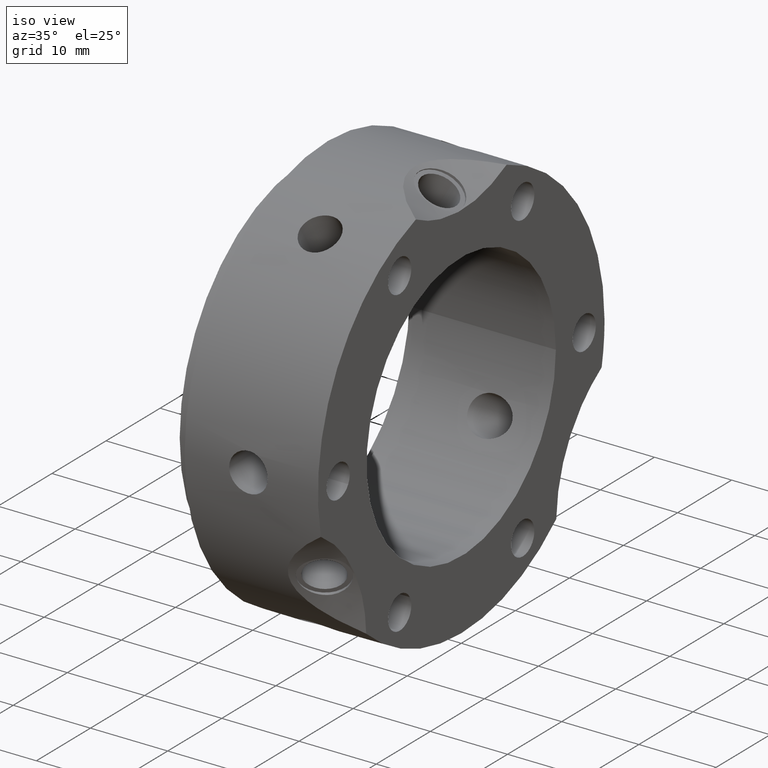
[diagram: clean part render]
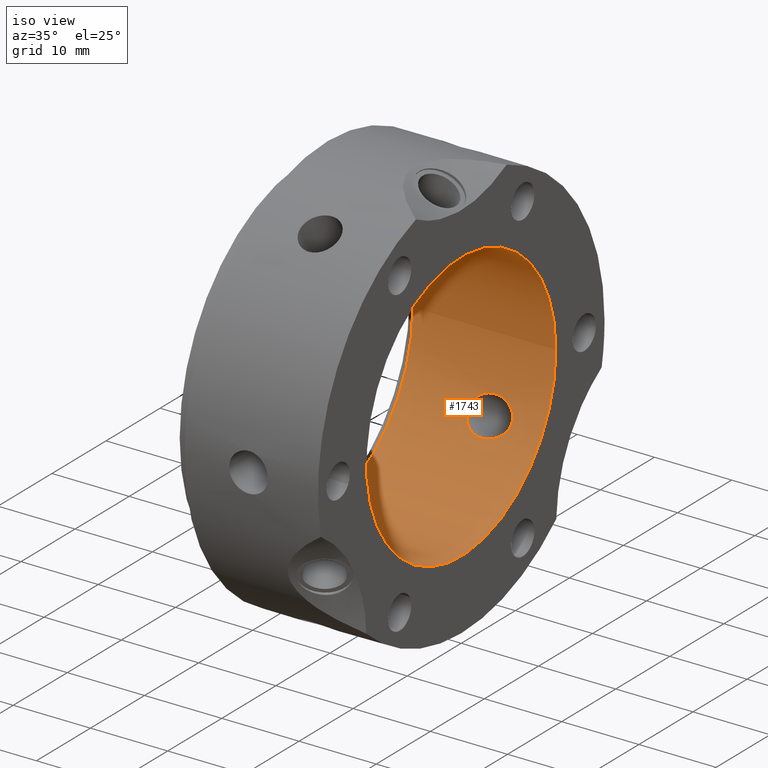
[diagram: same view with one face highlighted and labeled with its STEP entity id]
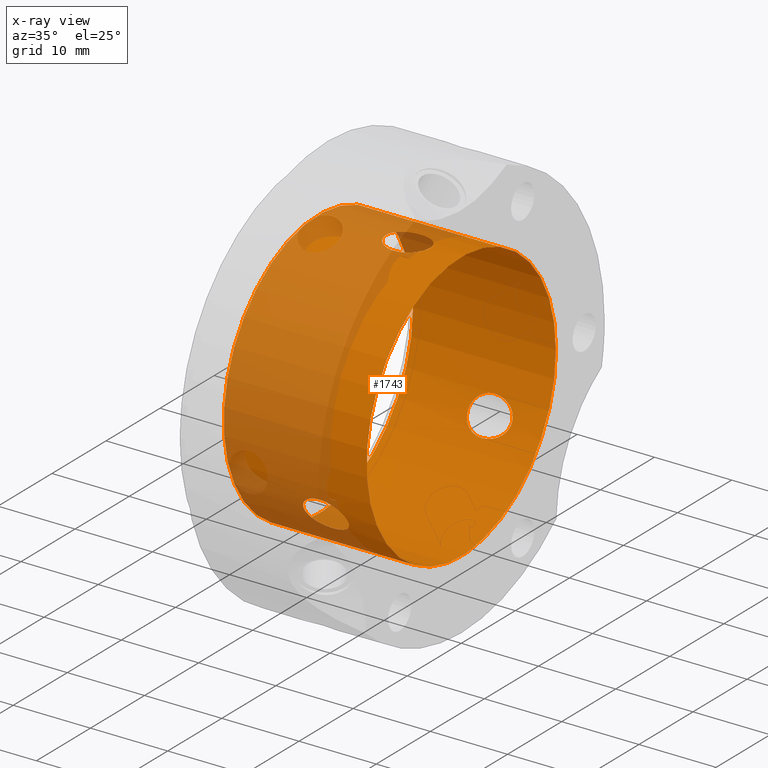
[diagram: x-ray of the same camera — body ghosted, the highlighted face saturated]
A machine part, iso view. The second image highlights one B-rep face of the part: STEP entity #1743.
The next image is the same camera in x-ray: the body ghosted, the highlighted face saturated — about 40% of this face is hidden behind the body in this view.
In plain terms, the highlighted cylindrical surface (bore or boss wall) has radius 17.5 mm, axis along (1, 0, 0).
Its self-contained STEP definition (entity closure, byte-faithful):
#1009=CARTESIAN_POINT('',(13.003429041250483,16.234393561875706,-6.534100219473887));
#1010=VERTEX_POINT('',#1009);
#1011=CARTESIAN_POINT('',(13.003429041250483,16.234393561875706,-6.534100219473887));
#1012=CARTESIAN_POINT('',(13.373336307908442,16.234393561875706,-6.534100219473887));
#1013=CARTESIAN_POINT('',(13.770285189591075,16.209947601815127,-6.595905488379764));
#1014=CARTESIAN_POINT('',(14.511918312238791,16.105838320849102,-6.846191825675691));
#1015=CARTESIAN_POINT('',(14.856675935834765,16.025869578238691,-7.034328190488567));
#1016=CARTESIAN_POINT('',(15.364097585535912,15.839158897460612,-7.443987466712572));
#1017=CARTESIAN_POINT('',(15.576430083381155,15.727602849725422,-7.679676166995005));
#1018=CARTESIAN_POINT('',(15.866034939625726,15.463193430240839,-8.199058902954477));
#1019=CARTESIAN_POINT('',(15.942460984423853,15.309665788798428,-8.482881006902074));
#1020=CARTESIAN_POINT('',(15.942460984423853,15.001223343656918,-9.017118993097943));
#1021=CARTESIAN_POINT('',(15.866034939625724,14.832190012203956,-9.291988882743981));
#1022=CARTESIAN_POINT('',(15.576430083381151,14.514596078318281,-9.780665524997263));
#1023=CARTESIAN_POINT('',(15.364097585535909,14.366261700356349,-9.995120246422943));
#1024=CARTESIAN_POINT('',(14.856675935834765,14.104841700639454,-10.361646077246645));
#1025=CARTESIAN_POINT('',(14.511918312238789,13.98189520064105,-10.524969222262397));
#1026=CARTESIAN_POINT('',(13.770285189591071,13.817195514805629,-10.74027367299667));
#1027=CARTESIAN_POINT('',(13.373336307908442,13.775893561875701,-10.79234712988197));
#1028=CARTESIAN_POINT('',(12.6627534965255,13.775893561875701,-10.79234712988197));
#1029=CARTESIAN_POINT('',(12.29565160609943,13.811252490323918,-10.747772379410465));
#1030=CARTESIAN_POINT('',(11.612956149517554,13.961830594717554,-10.55142610202032));
#1031=CARTESIAN_POINT('',(11.297504118251783,14.076982576244351,-10.3991113342442));
#1032=CARTESIAN_POINT('',(10.814017317679035,14.33544037064301,-10.039443479903557));
#1033=CARTESIAN_POINT('',(10.608326816669928,14.491576319438238,-9.815103226694662));
#1034=CARTESIAN_POINT('',(10.333766392309551,14.823068582513416,-9.306915345424757));
#1035=CARTESIAN_POINT('',(10.26479843721307,14.99794057673717,-9.022804912192353));
#1036=CARTESIAN_POINT('',(10.26479843721307,15.312948555718172,-8.477195087807669));
#1037=CARTESIAN_POINT('',(10.333766392309551,15.471559411265762,-8.183696281783245));
#1038=CARTESIAN_POINT('',(10.608326816669928,15.745916894803301,-7.642521620167196));
#1039=CARTESIAN_POINT('',(10.814017317679031,15.862133278776023,-7.395133795462097));
#1040=CARTESIAN_POINT('',(11.297504118251783,16.044385880360331,-6.99146885253644));
#1041=CARTESIAN_POINT('',(11.612956149517554,16.118718347862583,-6.815586927350058));
#1042=CARTESIAN_POINT('',(12.29565160609943,16.213470159824137,-6.587009324996388));
#1043=CARTESIAN_POINT('',(12.662753496525498,16.234393561875706,-6.534100219473887));
#1044=CARTESIAN_POINT('',(13.003429041250481,16.234393561875706,-6.534100219473887));
#1045=B_SPLINE_CURVE_WITH_KNOTS('',3,(#1011,#1012,#1013,#1014,#1015,#1016,#1017,#1018,#1019,#1020,#1021,#1022,#1023,#1024,#1025,#1026,#1027,#1028,#1029,#1030,#1031,#1032,#1033,#1034,#1035,#1036,#1037,#1038,#1039,#1040,#1041,#1042,#1043,#1044),.UNSPECIFIED.,.T.,.U.,(4,2,2,2,2,2,2,2,2,2,2,2,2,2,2,2,4),(0.0,0.110972179997387,0.221944359994774,0.314477093537227,0.40700982707968,0.499542560622133,0.592075294164585,0.703047474161973,0.81401965415936,0.916222317576854,1.018424980994349,1.112927374688649,1.20742976838295,1.30193216207725,1.39643455577155,1.498637219189045,1.60083988260654),.UNSPECIFIED.);
#1046=EDGE_CURVE('',#1010,#1010,#1045,.T.);
#1180=CARTESIAN_POINT('',(13.003429041250483,-13.775893561875709,-10.792347129881959));
#1181=VERTEX_POINT('',#1180);
#1182=CARTESIAN_POINT('',(13.003429041250483,-13.775893561875709,-10.792347129881959));
#1183=CARTESIAN_POINT('',(13.373336307908442,-13.775893561875709,-10.792347129881959));
#1184=CARTESIAN_POINT('',(13.770285189591075,-13.817195514805638,-10.740273672996661));
#1185=CARTESIAN_POINT('',(14.511918312238791,-13.981895200641059,-10.524969222262389));
#1186=CARTESIAN_POINT('',(14.856675935834765,-14.104841700639463,-10.361646077246633));
#1187=CARTESIAN_POINT('',(15.364097585535909,-14.366261700356358,-9.99512024642293));
#1188=CARTESIAN_POINT('',(15.576430083381155,-14.514596078318288,-9.78066552499725));
#1189=CARTESIAN_POINT('',(15.866034939625726,-14.832190012203963,-9.291988882743969));
#1190=CARTESIAN_POINT('',(15.942460984423853,-15.001223343656921,-9.017118993097933));
#1191=CARTESIAN_POINT('',(15.942460984423853,-15.317695526154473,-8.468973093829961));
#1192=CARTESIAN_POINT('',(15.858038676516639,-15.47781988171633,-8.171809819146024));
#1193=CARTESIAN_POINT('',(15.541785133059449,-15.750823224441293,-7.632362090455414));
#1194=CARTESIAN_POINT('',(15.31083778134837,-15.864473531899016,-7.389950450285607));
#1195=CARTESIAN_POINT('',(14.788449202465696,-16.042666331264112,-6.995277421971109));
#1196=CARTESIAN_POINT('',(14.453647602831339,-16.116226614764425,-6.821498244046975));
#1197=CARTESIAN_POINT('',(13.738177190724087,-16.211947517549127,-6.590778120195333));
#1198=CARTESIAN_POINT('',(13.357461792855588,-16.234393561875709,-6.534100219473874));
#1199=CARTESIAN_POINT('',(12.653604256878271,-16.234393561875709,-6.534100219473874));
#1200=CARTESIAN_POINT('',(12.277080953631852,-16.212347470664039,-6.589895600739731));
#1201=CARTESIAN_POINT('',(11.579822078598458,-16.112553213950001,-6.830268173590252));
#1202=CARTESIAN_POINT('',(11.259228811305789,-16.034268093852727,-7.015034870847647));
#1203=CARTESIAN_POINT('',(10.785404978638606,-15.846896785841395,-7.427688214276143));
#1204=CARTESIAN_POINT('',(10.590121643397875,-15.732024863359204,-7.6708155375877));
#1205=CARTESIAN_POINT('',(10.329853099904767,-15.462973052910689,-8.199663503824915));
#1206=CARTESIAN_POINT('',(10.26479843721307,-15.308365902214867,-8.485132476508872));
#1207=CARTESIAN_POINT('',(10.26479843721307,-15.00252323024049,-9.01486752349112));
#1208=CARTESIAN_POINT('',(10.329853099904762,-14.832603423251845,-9.291495729942408));
#1209=CARTESIAN_POINT('',(10.590121643397872,-14.509133554974937,-9.788925415843625));
#1210=CARTESIAN_POINT('',(10.785404978638608,-14.356015077874114,-10.009971080550537));
#1211=CARTESIAN_POINT('',(11.259228811305789,-14.092332453514121,-10.378566064942918));
#1212=CARTESIAN_POINT('',(11.579822078598461,-13.971462359964503,-10.538746316314175));
#1213=CARTESIAN_POINT('',(12.277080953631858,-13.813190733859948,-10.745356964205577));
#1214=CARTESIAN_POINT('',(12.653604256878275,-13.775893561875709,-10.792347129881959));
#1215=CARTESIAN_POINT('',(13.003429041250484,-13.775893561875709,-10.792347129881959));
#1216=B_SPLINE_CURVE_WITH_KNOTS('',3,(#1182,#1183,#1184,#1185,#1186,#1187,#1188,#1189,#1190,#1191,#1192,#1193,#1194,#1195,#1196,#1197,#1198,#1199,#1200,#1201,#1202,#1203,#1204,#1205,#1206,#1207,#1208,#1209,#1210,#1211,#1212,#1213,#1214,#1215),.UNSPECIFIED.,.T.,.U.,(4,2,2,2,2,2,2,2,2,2,2,2,2,2,2,2,4),(0.0,0.110972179997387,0.221944359994774,0.314477093537227,0.40700982707968,0.504360403035758,0.601710978991837,0.707920804473369,0.8141306299549,0.919078065266564,1.024025500578227,1.115778302170541,1.207531103762854,1.299283905355168,1.391036706947482,1.495984142259145,1.600931577570809),.UNSPECIFIED.);
#1217=EDGE_CURVE('',#1181,#1181,#1216,.T.);
#1438=CARTESIAN_POINT('',(13.003429041250484,-2.4585,17.326447349355838));
#1439=VERTEX_POINT('',#1438);
#1440=CARTESIAN_POINT('',(13.003429041250484,-2.4585,17.326447349355838));
#1441=CARTESIAN_POINT('',(13.373336307908442,-2.4585,17.326447349355838));
#1442=CARTESIAN_POINT('',(13.770285189591075,-2.392752087009492,17.336179161376421));
#1443=CARTESIAN_POINT('',(14.511918312238791,-2.123943120208047,17.371161047938074));
#1444=CARTESIAN_POINT('',(14.856675935834765,-1.921027877599233,17.395974267735195));
#1445=CARTESIAN_POINT('',(15.364097585535909,-1.472897197104262,17.439107713135495));
#1446=CARTESIAN_POINT('',(15.576430083381151,-1.21300677140714,17.460341691992248));
#1447=CARTESIAN_POINT('',(15.866034939625724,-0.631003418036881,17.491047785698438));
#1448=CARTESIAN_POINT('',(15.942460984423853,-0.30844244514151,17.5));
#1449=CARTESIAN_POINT('',(15.942460984423853,0.308442445141509,17.5));
#1450=CARTESIAN_POINT('',(15.866034939625724,0.63100341803688,17.491047785698438));
#1451=CARTESIAN_POINT('',(15.576430083381151,1.21300677140714,17.460341691992248));
#1452=CARTESIAN_POINT('',(15.364097585535909,1.472897197104261,17.439107713135495));
#1453=CARTESIAN_POINT('',(14.856675935834765,1.921027877599233,17.395974267735195));
#1454=CARTESIAN_POINT('',(14.511918312238787,2.123943120208049,17.371161047938074));
#1455=CARTESIAN_POINT('',(13.770285189591069,2.392752087009494,17.336179161376421));
#1456=CARTESIAN_POINT('',(13.373336307908438,2.4585,17.326447349355838));
#1457=CARTESIAN_POINT('',(12.653604256878271,2.4585,17.326447349355838));
#1458=CARTESIAN_POINT('',(12.277080953631854,2.399156736804095,17.335252564945314));
#1459=CARTESIAN_POINT('',(11.579822078598458,2.141090853985497,17.36901448990443));
#1460=CARTESIAN_POINT('',(11.259228811305785,1.941935640338608,17.39360093579057));
#1461=CARTESIAN_POINT('',(10.785404978638606,1.490881707967282,17.437659294826688));
#1462=CARTESIAN_POINT('',(10.590121643397875,1.222891308384266,17.459740953431332));
#1463=CARTESIAN_POINT('',(10.329853099904764,0.630369629658845,17.491159233767327));
#1464=CARTESIAN_POINT('',(10.26479843721307,0.30584267197438,17.5));
#1465=CARTESIAN_POINT('',(10.26479843721307,-0.305842671974379,17.5));
#1466=CARTESIAN_POINT('',(10.329853099904764,-0.630369629658845,17.491159233767327));
#1467=CARTESIAN_POINT('',(10.590121643397875,-1.222891308384267,17.459740953431332));
#1468=CARTESIAN_POINT('',(10.785404978638608,-1.490881707967284,17.437659294826688));
#1469=CARTESIAN_POINT('',(11.259228811305789,-1.94193564033861,17.393600935790573));
#1470=CARTESIAN_POINT('',(11.579822078598458,-2.141090853985499,17.36901448990443));
#1471=CARTESIAN_POINT('',(12.277080953631852,-2.399156736804095,17.335252564945314));
#1472=CARTESIAN_POINT('',(12.653604256878275,-2.4585,17.326447349355838));
#1473=CARTESIAN_POINT('',(13.003429041250484,-2.4585,17.326447349355838));
#1474=B_SPLINE_CURVE_WITH_KNOTS('',3,(#1440,#1441,#1442,#1443,#1444,#1445,#1446,#1447,#1448,#1449,#1450,#1451,#1452,#1453,#1454,#1455,#1456,#1457,#1458,#1459,#1460,#1461,#1462,#1463,#1464,#1465,#1466,#1467,#1468,#1469,#1470,#1471,#1472,#1473),.UNSPECIFIED.,.T.,.U.,(4,2,2,2,2,2,2,2,2,2,2,2,2,2,2,2,4),(0.0,0.110972179997387,0.221944359994774,0.314477093537227,0.40700982707968,0.499542560622133,0.592075294164585,0.703047474161973,0.81401965415936,0.918967089471023,1.023914524782686,1.115667326375,1.207420127967314,1.299172929559628,1.390925731151942,1.495873166463605,1.600820601775268),.UNSPECIFIED.);
#1475=EDGE_CURVE('',#1439,#1439,#1474,.T.);
#1611=CARTESIAN_POINT('',(19.999999999999996,17.5,0.0));
#1612=VERTEX_POINT('',#1611);
#1613=CARTESIAN_POINT('',(19.999999999999996,0.0,0.0));
#1614=DIRECTION('',(1.0,0.0,0.0));
#1615=DIRECTION('',(0.0,1.0,0.0));
#1616=AXIS2_PLACEMENT_3D('',#1613,#1614,#1615);
#1617=CIRCLE('',#1616,17.5);
#1618=EDGE_CURVE('',#1612,#1612,#1617,.T.);
#1639=CARTESIAN_POINT('',(1.499999999999995,17.5,0.0));
#1640=VERTEX_POINT('',#1639);
#1641=CARTESIAN_POINT('',(1.499999999999995,0.0,0.0));
#1642=DIRECTION('',(1.0,0.0,0.0));
#1643=DIRECTION('',(0.0,1.0,0.0));
#1644=AXIS2_PLACEMENT_3D('',#1641,#1642,#1643);
#1645=CIRCLE('',#1644,17.5);
#1646=EDGE_CURVE('',#1640,#1640,#1645,.T.);
#1723=CARTESIAN_POINT('',(10.749999999999995,0.0,0.0));
#1724=DIRECTION('',(1.0,0.0,0.0));
#1725=DIRECTION('',(0.0,1.0,0.0));
#1726=AXIS2_PLACEMENT_3D('',#1723,#1724,#1725);
#1727=CYLINDRICAL_SURFACE('',#1726,17.5);
#1728=ORIENTED_EDGE('',*,*,#1217,.T.);
#1729=EDGE_LOOP('',(#1728));
#1730=FACE_OUTER_BOUND('',#1729,.T.);
#1731=ORIENTED_EDGE('',*,*,#1046,.T.);
#1732=EDGE_LOOP('',(#1731));
#1733=FACE_BOUND('',#1732,.T.);
#1734=ORIENTED_EDGE('',*,*,#1475,.T.);
#1735=EDGE_LOOP('',(#1734));
#1736=FACE_BOUND('',#1735,.T.);
#1737=ORIENTED_EDGE('',*,*,#1646,.F.);
#1738=EDGE_LOOP('',(#1737));
#1739=FACE_BOUND('',#1738,.T.);
#1740=ORIENTED_EDGE('',*,*,#1618,.T.);
#1741=EDGE_LOOP('',(#1740));
#1742=FACE_BOUND('',#1741,.T.);
#1743=ADVANCED_FACE('',(#1730,#1733,#1736,#1739,#1742),#1727,.F.);